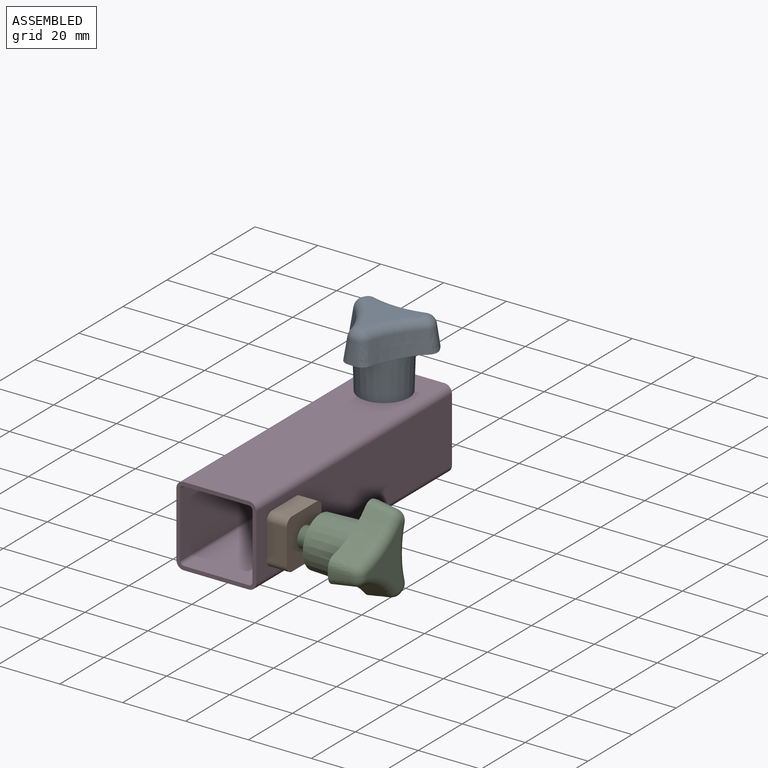
[diagram: assembled view]
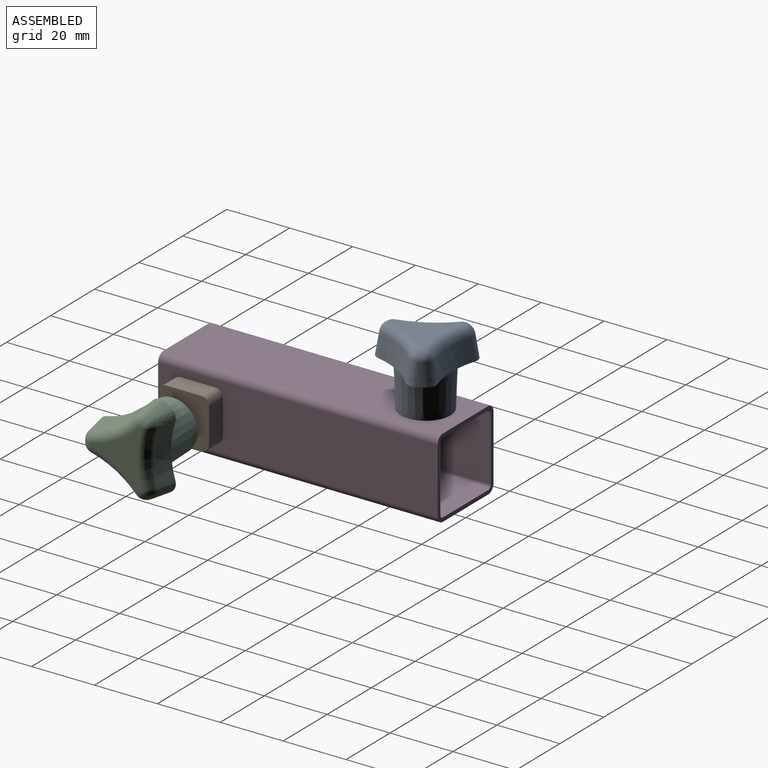
[diagram: assembled view, second angle]
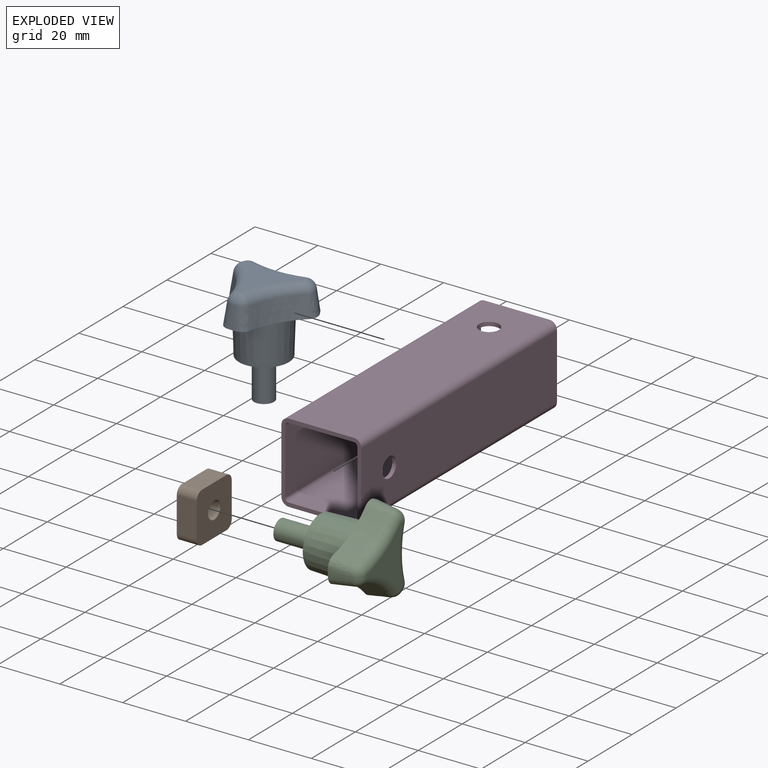
[diagram: exploded view]
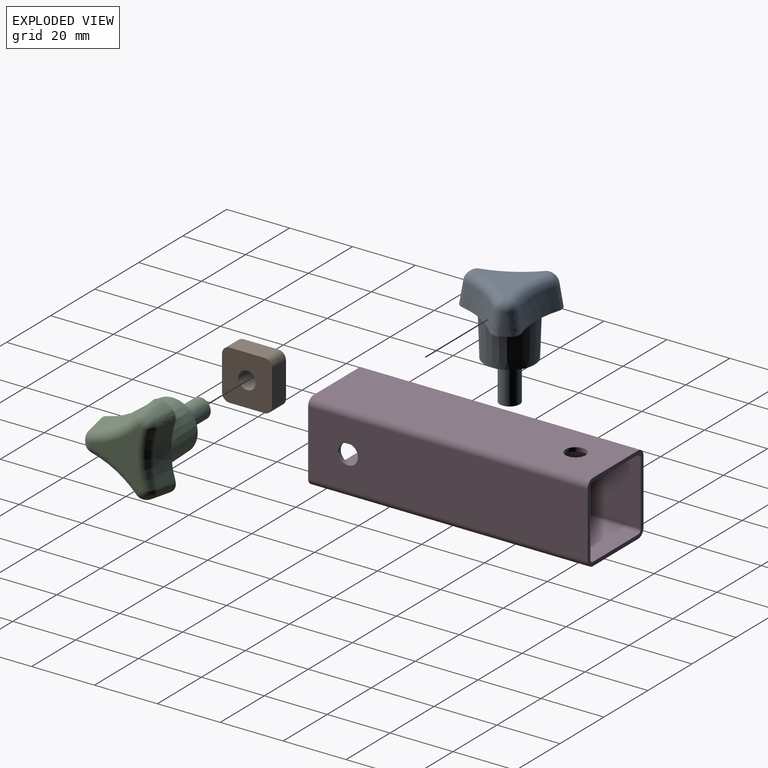
[diagram: exploded view, second angle]
ASSEMBLY  parts=4 mates=3
PART A: 32 faces, bbox 31.2x27.4x43.1 mm
  f0: cylinder r=3.17mm len=12.7mm, axis (0,0,-1), area 253.4mm2, adj f1,f3
  f1: plane 6.35x6.35mm, normal (0,0,-1), area 31.7mm2, adj f0
  f2: cone r=7.94mm half-angle=2deg, axis (0,0,1), area 651.5mm2, adj f3,f4,f5,f13
  f3: plane 15.88x15.88mm, normal (0,0,-1), area 166.3mm2, adj f0,f2
  f4: plane 14.22x13.84mm, normal (0,0,-1), area 61.2mm2, adj f2,f6,f10,f11,f25,f31
  f5: plane 14.69x10.68mm, normal (0,0,-1), area 61.2mm2, adj f2,f6,f7,f8,f14,f19
  f6: cone r=27.64mm half-angle=7.5deg, axis (0,0,1), area 114.9mm2, adj f4,f5,f19,f24,f25
  f7: cone r=14.7mm half-angle=7.5deg, axis (0,0,-1), area 12.9mm2, adj f5,f14,f18,f19
  f8: cone r=27.64mm half-angle=7.5deg, axis (0,0,1), area 114.9mm2, adj f5,f13,f14,f16,f17
  f9: cone r=14.7mm half-angle=7.5deg, axis (0,0,-1), area 12.9mm2, adj f13,f16,f22,f23
  f10: cone r=27.64mm half-angle=7.5deg, axis (0,0,1), area 114.9mm2, adj f4,f13,f22,f28,f31
  f11: cone r=14.7mm half-angle=7.5deg, axis (0,0,-1), area 12.9mm2, adj f4,f25,f29,f31
  f12: plane 18.83x16.32mm, normal (0,0,1), area 117.9mm2, adj f17,f18,f23,f24,f28,f29
  f13: plane 14.22x13.84mm, normal (0,0,-1), area 61.2mm2, adj f2,f8,f9,f10,f16,f22
  f14: bspline ~25.75x6.02mm, area 27.6mm2, adj f5,f7,f8,f15
  f15: sphere r=3.17mm, area 6.4mm2, adj f14,f17,f18
  f16: bspline ~19.36x4.58mm, area 27.6mm2, adj f8,f9,f13,f20
  f17: torus R=31.68mm, axis (0,0,1), area 78.7mm2, adj f8,f12,f15,f20
  f18: torus R=10.66mm, axis (0,0,1), area 4.1mm2, adj f7,f12,f15,f21
  f19: bspline ~19.36x5.16mm, area 27.6mm2, adj f5,f6,f7,f21
  f20: sphere r=3.17mm, area 16mm2, adj f16,f17,f23
  f21: sphere r=3.17mm, area 17mm2, adj f18,f19,f24
  f22: bspline ~25.75x6.24mm, area 27.6mm2, adj f9,f10,f13,f26
  f23: torus R=10.66mm, axis (0,0,1), area 4.1mm2, adj f9,f12,f20,f26
  f24: torus R=31.68mm, axis (0,0,1), area 78.7mm2, adj f6,f12,f21,f27
  f25: bspline ~25.75x5.59mm, area 27.6mm2, adj f4,f6,f11,f27
  f26: sphere r=3.17mm, area 8.1mm2, adj f22,f23,f28
  f27: sphere r=3.17mm, area 6.5mm2, adj f24,f25,f29
  f28: torus R=31.68mm, axis (0,0,1), area 78.7mm2, adj f10,f12,f26,f30
  f29: torus R=10.66mm, axis (0,0,1), area 4.1mm2, adj f11,f12,f27,f30
  f30: sphere r=3.17mm, area 20.4mm2, adj f28,f29,f31
  f31: bspline ~19.36x5.07mm, area 27.6mm2, adj f4,f10,f11,f30
PART B: 11 faces, bbox 15.9x15.9x6.4 mm
  f0: plane 11.11x6.35mm, normal (1,0,0), area 70.6mm2, adj f1,f8,f9,f10
  f1: cylinder r=2.38mm len=6.35mm, axis (0,0,-1), area 23.8mm2, adj f0,f2,f9,f10
  f2: plane 11.11x6.35mm, normal (0,1,0), area 70.6mm2, adj f1,f3,f9,f10
  f3: cylinder r=2.38mm len=6.35mm, axis (0,0,-1), area 23.8mm2, adj f2,f4,f9,f10
  f4: plane 11.11x6.35mm, normal (-1,0,0), area 70.6mm2, adj f3,f5,f9,f10
  f5: cylinder r=2.38mm len=6.35mm, axis (0,0,-1), area 23.8mm2, adj f4,f6,f9,f10
  f6: plane 11.11x6.35mm, normal (0,-1,0), area 70.6mm2, adj f5,f8,f9,f10
  f7: cylinder r=2.77mm len=6.35mm, axis (0,0,-1), area 110.6mm2, adj f9,f10
  f8: cylinder r=2.38mm len=6.35mm, axis (0,0,-1), area 23.8mm2, adj f0,f6,f9,f10
  f9: plane 15.88x15.88mm, normal (0,0,1), area 223mm2, adj f0,f1,f2,f3,f4,f5,f6,f7
  f10: plane 15.88x15.88mm, normal (0,0,-1), area 223mm2, adj f0,f1,f2,f3,f4,f5,f6,f7
PART C: same geometry as A
PART D: 21 faces, bbox 25.4x88.9x25.4 mm
  f0: plane 88.9x20.64mm, normal (1,0,0), area 1803mm2, adj f1,f15,f16,f17,f20
  f1: cylinder r=2.38mm len=88.9mm, axis (0,1,0), area 332.5mm2, adj f0,f2,f16,f17
  f2: plane 88.9x20.64mm, normal (0,0,1), area 1803mm2, adj f1,f3,f16,f17,f18
  f3: cylinder r=2.38mm len=88.9mm, axis (0,1,0), area 332.5mm2, adj f2,f4,f16,f17
  f4: plane 88.9x20.64mm, normal (-1,0,0), area 1834.7mm2, adj f3,f5,f16,f17
  f5: cylinder r=2.38mm len=88.9mm, axis (0,1,0), area 332.5mm2, adj f4,f6,f16,f17
  f6: plane 88.9x20.64mm, normal (0,0,-1), area 1803mm2, adj f5,f15,f16,f17,f19
  f7: cylinder r=1.14mm len=88.9mm, axis (0,1,0), area 158.7mm2, adj f8,f14,f16,f17
  f8: plane 88.9x20.64mm, normal (-1,0,0), area 1803mm2, adj f7,f9,f16,f17,f20
  f9: cylinder r=1.14mm len=88.9mm, axis (0,1,0), area 158.7mm2, adj f8,f10,f16,f17
  f10: plane 88.9x20.64mm, normal (0,0,1), area 1803mm2, adj f9,f11,f16,f17,f19
  f11: cylinder r=1.14mm len=88.9mm, axis (0,1,0), area 158.7mm2, adj f10,f12,f16,f17
  f12: plane 88.9x20.64mm, normal (1,0,0), area 1834.7mm2, adj f11,f13,f16,f17
  f13: cylinder r=1.14mm len=88.9mm, axis (0,1,0), area 158.7mm2, adj f12,f14,f16,f17
  f14: plane 88.9x20.64mm, normal (0,0,-1), area 1803mm2, adj f7,f13,f16,f17,f18
  f15: cylinder r=2.38mm len=88.9mm, axis (0,1,0), area 332.5mm2, adj f0,f6,f16,f17
  f16: plane 25.4x25.4mm, normal (0,-1,0), area 116.5mm2, adj f0,f1,f2,f3,f4,f5,f6,f7
  f17: plane 25.4x25.4mm, normal (0,1,0), area 116.5mm2, adj f0,f1,f2,f3,f4,f5,f6,f7
  f18: cylinder r=3.17mm len=6.35mm, axis (0,0,1), area 24.8mm2, adj f2,f14
  f19: cylinder r=3.17mm len=6.35mm, axis (0,0,1), area 24.8mm2, adj f6,f10
  f20: cylinder r=3.17mm len=6.35mm, axis (1,0,0), area 24.8mm2, adj f0,f8
PLACE A t=(0,-12.7,0)mm
PLACE B rot(axis=(0,1,0),90deg) t=(12.7,-76.2,0)mm
PLACE C rot(axis=(0,1,0),90deg) t=(11.46,-76.2,0)mm
PLACE D at identity fixed
MATE fastened D.f18 <-> A.f2  axis (0,0,1) through (0,-12.7,12.7)mm
MATE fastened D.f20 <-> B.f7  axis (1,0,0) through (12.7,-76.2,0)mm
MATE fastened D.f20 <-> C.f0  axis (-1,0,0) through (11.46,-76.2,0)mm
